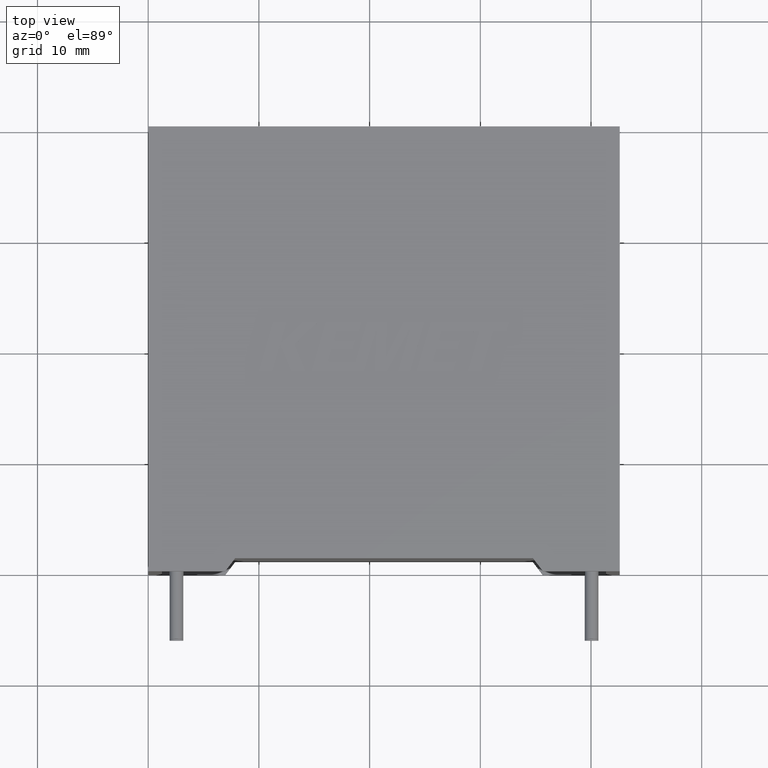
[diagram: clean part render]
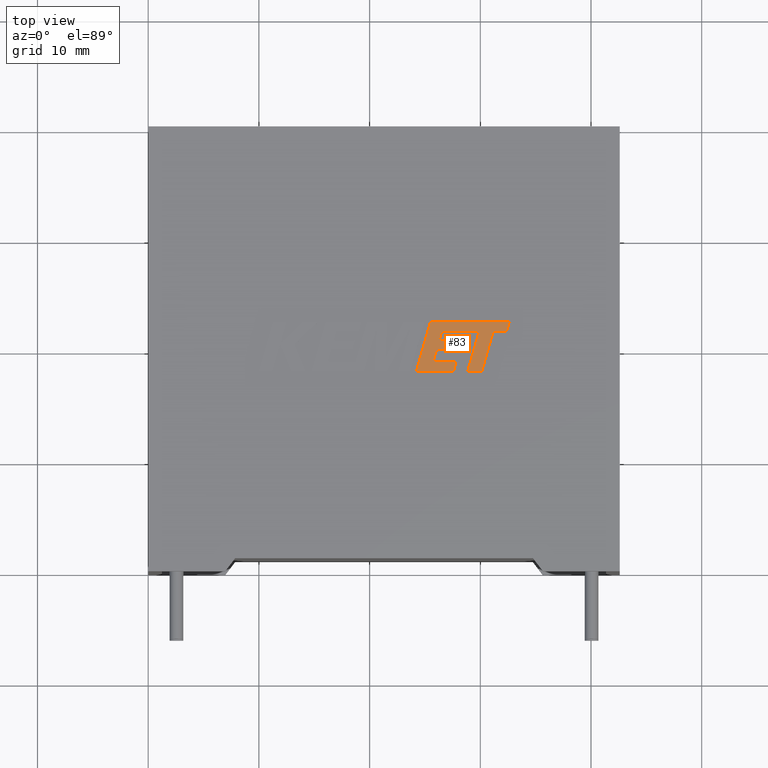
[diagram: same view with one face highlighted and labeled with its STEP entity id]
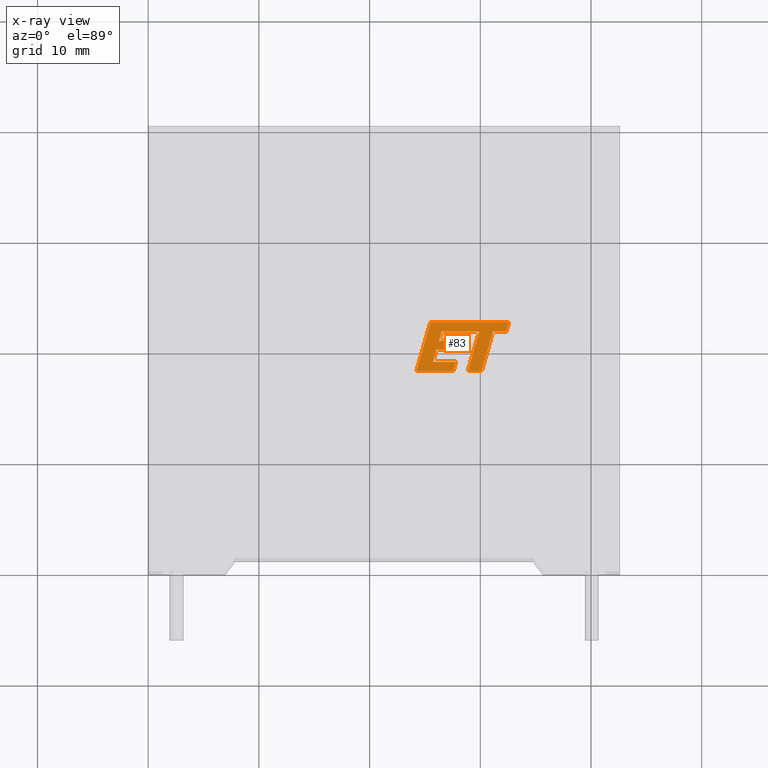
[diagram: x-ray of the same camera — body ghosted, the highlighted face saturated]
A machine part, top view. The second image highlights one B-rep face of the part: STEP entity #83.
The next image is the same camera in x-ray: the body ghosted, the highlighted face saturated — about 0% of this face is hidden behind the body in this view.
In plain terms, the highlighted planar face has unit normal (-0, 0, 1).
Its self-contained STEP definition (entity closure, byte-faithful):
#6 = EDGE_CURVE ( 'NONE', #1576, #2768, #950, .T. ) ;
#40 = FACE_OUTER_BOUND ( 'NONE', #1829, .T. ) ;
#45 = CARTESIAN_POINT ( 'NONE',  ( 32.37075679330736500, 21.65695736867256800, 20.40500000000000100 ) ) ;
#61 = VERTEX_POINT ( 'NONE', #2736 ) ;
#77 = CARTESIAN_POINT ( 'NONE',  ( 29.89313066474344200, 21.65705377867145700, 20.40500000000000100 ) ) ;
#80 = VERTEX_POINT ( 'NONE', #310 ) ;
#83 = ADVANCED_FACE ( 'NONE', ( #40 ), #1997, .T. ) ;
#88 = VERTEX_POINT ( 'NONE', #2972 ) ;
#90 = EDGE_CURVE ( 'NONE', #88, #1980, #719, .T. ) ;
#93 = EDGE_CURVE ( 'NONE', #604, #1782, #391, .T. ) ;
#138 = EDGE_CURVE ( 'NONE', #2768, #1651, #1220, .T. ) ;
#141 = CARTESIAN_POINT ( 'NONE',  ( 26.27200581737446300, 20.84403507756074300, 20.40500000000000100 ) ) ;
#187 = LINE ( 'NONE', #924, #2376 ) ;
#212 = ORIENTED_EDGE ( 'NONE', *, *, #426, .T. ) ;
#220 = DIRECTION ( 'NONE',  ( 0.9999891854650021500, -0.004650693823667352200, 0.0000000000000000000 ) ) ;
#232 = DIRECTION ( 'NONE',  ( -1.000000000000000000, 0.0000000000000000000, 0.0000000000000000000 ) ) ;
#254 = CARTESIAN_POINT ( 'NONE',  ( 27.81132374233068600, 18.92196462307432700, 20.40500000000000100 ) ) ;
#260 = CARTESIAN_POINT ( 'NONE',  ( 25.72339385838279600, 18.92196462307432700, 20.40500000000000100 ) ) ;
#291 = CARTESIAN_POINT ( 'NONE',  ( 26.51206906704381800, 21.66904345445730200, 20.40500000000000100 ) ) ;
#302 = DIRECTION ( 'NONE',  ( -1.000000000000000000, -9.064081856670371200E-016, 0.0000000000000000000 ) ) ;
#310 = CARTESIAN_POINT ( 'NONE',  ( 28.17549160006052100, 20.84403507756074300, 20.40500000000000100 ) ) ;
#342 = DIRECTION ( 'NONE',  ( 0.2762033010288772500, 0.9610992334305296100, 0.0000000000000000000 ) ) ;
#370 = VECTOR ( 'NONE', #868, 1000.000000000000000 ) ;
#380 = DIRECTION ( 'NONE',  ( 0.2793947940814967600, 0.9601763114346021400, 0.0000000000000000000 ) ) ;
#385 = VECTOR ( 'NONE', #232, 1000.000000000000000 ) ;
#391 = LINE ( 'NONE', #1549, #874 ) ;
#411 = VECTOR ( 'NONE', #847, 999.9999999999998900 ) ;
#426 = EDGE_CURVE ( 'NONE', #428, #2434, #2578, .T. ) ;
#428 = VERTEX_POINT ( 'NONE', #1685 ) ;
#456 = CARTESIAN_POINT ( 'NONE',  ( 28.54467650997437600, 21.66332509390189600, 20.40500000000000100 ) ) ;
#470 = VERTEX_POINT ( 'NONE', #456 ) ;
#471 = ORIENTED_EDGE ( 'NONE', *, *, #1256, .T. ) ;
#478 = LINE ( 'NONE', #2056, #411 ) ;
#498 = EDGE_CURVE ( 'NONE', #2434, #1148, #2342, .T. ) ;
#501 = ORIENTED_EDGE ( 'NONE', *, *, #1468, .T. ) ;
#509 = ORIENTED_EDGE ( 'NONE', *, *, #3036, .T. ) ;
#516 = VECTOR ( 'NONE', #2804, 1000.000000000000000 ) ;
#526 = VECTOR ( 'NONE', #1778, 1000.000000000000100 ) ;
#538 = DIRECTION ( 'NONE',  ( 0.9999999968487352000, -7.938847107242143300E-005, 0.0000000000000000000 ) ) ;
#550 = VECTOR ( 'NONE', #302, 1000.000000000000000 ) ;
#565 = ORIENTED_EDGE ( 'NONE', *, *, #6, .T. ) ;
#589 = DIRECTION ( 'NONE',  ( 1.000000000000000000, 0.0000000000000000000, 0.0000000000000000000 ) ) ;
#604 = VERTEX_POINT ( 'NONE', #45 ) ;
#655 = DIRECTION ( 'NONE',  ( -1.000000000000000000, 0.0000000000000000000, 0.0000000000000000000 ) ) ;
#680 = ORIENTED_EDGE ( 'NONE', *, *, #2729, .T. ) ;
#719 = LINE ( 'NONE', #77, #526 ) ;
#721 = DIRECTION ( 'NONE',  ( 0.2745159998572472800, 0.9615825319869199000, 0.0000000000000000000 ) ) ;
#759 = ORIENTED_EDGE ( 'NONE', *, *, #90, .T. ) ;
#800 = AXIS2_PLACEMENT_3D ( 'NONE', #1537, #2489, #1283 ) ;
#814 = VERTEX_POINT ( 'NONE', #2775 ) ;
#847 = DIRECTION ( 'NONE',  ( 0.2762437428917328100, 0.9610876102172820600, 0.0000000000000000000 ) ) ;
#863 = CARTESIAN_POINT ( 'NONE',  ( 24.22065186225110600, 18.07793999999988400, 20.40500000000000100 ) ) ;
#868 = DIRECTION ( 'NONE',  ( 1.000000000000000000, 0.0000000000000000000, 0.0000000000000000000 ) ) ;
#874 = VECTOR ( 'NONE', #342, 999.9999999999998900 ) ;
#924 = CARTESIAN_POINT ( 'NONE',  ( 28.54467650997437600, 21.66332509390189600, 20.40500000000000100 ) ) ;
#950 = LINE ( 'NONE', #2414, #1022 ) ;
#957 = LINE ( 'NONE', #291, #1690 ) ;
#967 = DIRECTION ( 'NONE',  ( -0.2764273280489751300, -0.9610348236706639500, 0.0000000000000000000 ) ) ;
#1003 = CARTESIAN_POINT ( 'NONE',  ( 31.15634887918023200, 21.65705377866043300, 20.40500000000000100 ) ) ;
#1018 = CARTESIAN_POINT ( 'NONE',  ( 24.22065186225110600, 18.07793999999988400, 20.40500000000000100 ) ) ;
#1022 = VECTOR ( 'NONE', #967, 1000.000000000000200 ) ;
#1075 = VECTOR ( 'NONE', #2841, 1000.000000000000100 ) ;
#1133 = EDGE_CURVE ( 'NONE', #470, #88, #187, .T. ) ;
#1148 = VERTEX_POINT ( 'NONE', #2645 ) ;
#1155 = CARTESIAN_POINT ( 'NONE',  ( 27.57182693403756000, 18.07793999999988400, 20.40500000000000100 ) ) ;
#1161 = LINE ( 'NONE', #2588, #370 ) ;
#1184 = VERTEX_POINT ( 'NONE', #3039 ) ;
#1191 = LINE ( 'NONE', #1155, #1075 ) ;
#1220 = LINE ( 'NONE', #863, #3114 ) ;
#1247 = CARTESIAN_POINT ( 'NONE',  ( 27.94128157793912900, 20.02420559324085800, 20.40500000000000100 ) ) ;
#1256 = EDGE_CURVE ( 'NONE', #80, #814, #2906, .T. ) ;
#1283 = DIRECTION ( 'NONE',  ( 1.000000000000000000, 0.0000000000000000000, 0.0000000000000000000 ) ) ;
#1309 = VECTOR ( 'NONE', #2694, 999.9999999999998900 ) ;
#1344 = ORIENTED_EDGE ( 'NONE', *, *, #2405, .T. ) ;
#1357 = CARTESIAN_POINT ( 'NONE',  ( 32.61690448309159500, 22.51347267852247200, 20.40500000000000100 ) ) ;
#1394 = VECTOR ( 'NONE', #380, 1000.000000000000100 ) ;
#1468 = EDGE_CURVE ( 'NONE', #1510, #604, #2057, .T. ) ;
#1471 = LINE ( 'NONE', #1247, #1309 ) ;
#1510 = VERTEX_POINT ( 'NONE', #2962 ) ;
#1537 = CARTESIAN_POINT ( 'NONE',  ( -0.1503410928526370500, -4.145153983250438000, 20.40500000000000100 ) ) ;
#1549 = CARTESIAN_POINT ( 'NONE',  ( 32.37075679330736500, 21.65695736867256800, 20.40500000000000100 ) ) ;
#1576 = VERTEX_POINT ( 'NONE', #2476 ) ;
#1629 = ORIENTED_EDGE ( 'NONE', *, *, #2281, .T. ) ;
#1651 = VERTEX_POINT ( 'NONE', #3003 ) ;
#1664 = ORIENTED_EDGE ( 'NONE', *, *, #1133, .T. ) ;
#1685 = CARTESIAN_POINT ( 'NONE',  ( 27.81132374233068600, 18.92196462307432700, 20.40500000000000100 ) ) ;
#1690 = VECTOR ( 'NONE', #2994, 999.9999999999998900 ) ;
#1702 = EDGE_CURVE ( 'NONE', #1148, #1184, #2485, .T. ) ;
#1778 = DIRECTION ( 'NONE',  ( -0.2763173343569894600, -0.9610664548998927300, 0.0000000000000000000 ) ) ;
#1782 = VERTEX_POINT ( 'NONE', #1357 ) ;
#1814 = VECTOR ( 'NONE', #721, 1000.000000000000100 ) ;
#1829 = EDGE_LOOP ( 'NONE', ( #680, #1664, #759, #1344, #1629, #501, #2153, #2696, #565, #2355, #509, #212, #2858, #1869, #2925, #471, #2626 ) ) ;
#1849 = CARTESIAN_POINT ( 'NONE',  ( 26.51206906704381800, 21.66904345445730200, 20.40500000000000100 ) ) ;
#1869 = ORIENTED_EDGE ( 'NONE', *, *, #1702, .T. ) ;
#1977 = CARTESIAN_POINT ( 'NONE',  ( 32.61690448309159500, 22.51347267852247200, 20.40500000000000100 ) ) ;
#1980 = VERTEX_POINT ( 'NONE', #2410 ) ;
#1985 = LINE ( 'NONE', #141, #1394 ) ;
#1997 = PLANE ( 'NONE',  #800 ) ;
#2003 = VECTOR ( 'NONE', #655, 1000.000000000000000 ) ;
#2046 = VECTOR ( 'NONE', #538, 1000.000000000000100 ) ;
#2056 = CARTESIAN_POINT ( 'NONE',  ( 30.12761042085275800, 18.07793999999988400, 20.40500000000000100 ) ) ;
#2057 = LINE ( 'NONE', #1003, #2046 ) ;
#2089 = EDGE_CURVE ( 'NONE', #1782, #1576, #2479, .T. ) ;
#2153 = ORIENTED_EDGE ( 'NONE', *, *, #93, .T. ) ;
#2281 = EDGE_CURVE ( 'NONE', #61, #1510, #478, .T. ) ;
#2298 = CARTESIAN_POINT ( 'NONE',  ( 26.03806552924152100, 20.02420559324085800, 20.40500000000000100 ) ) ;
#2323 = EDGE_CURVE ( 'NONE', #814, #2437, #1985, .T. ) ;
#2342 = LINE ( 'NONE', #260, #1814 ) ;
#2355 = ORIENTED_EDGE ( 'NONE', *, *, #138, .T. ) ;
#2376 = VECTOR ( 'NONE', #220, 1000.000000000000100 ) ;
#2378 = CARTESIAN_POINT ( 'NONE',  ( 28.17549160006052100, 20.84403507756074300, 20.40500000000000100 ) ) ;
#2405 = EDGE_CURVE ( 'NONE', #1980, #61, #1161, .T. ) ;
#2410 = CARTESIAN_POINT ( 'NONE',  ( 28.86409549902650400, 18.07793999999988400, 20.40500000000000100 ) ) ;
#2414 = CARTESIAN_POINT ( 'NONE',  ( 25.49646665750985300, 22.51347267852246900, 20.40500000000000100 ) ) ;
#2434 = VERTEX_POINT ( 'NONE', #2827 ) ;
#2437 = VERTEX_POINT ( 'NONE', #1849 ) ;
#2476 = CARTESIAN_POINT ( 'NONE',  ( 25.49646665750985300, 22.51347267852246900, 20.40500000000000100 ) ) ;
#2479 = LINE ( 'NONE', #1977, #550 ) ;
#2485 = LINE ( 'NONE', #2298, #516 ) ;
#2489 = DIRECTION ( 'NONE',  ( -0.0000000000000000000, 0.0000000000000000000, 1.000000000000000000 ) ) ;
#2548 = EDGE_CURVE ( 'NONE', #1184, #80, #1471, .T. ) ;
#2578 = LINE ( 'NONE', #254, #385 ) ;
#2588 = CARTESIAN_POINT ( 'NONE',  ( 28.86409549902650400, 18.07793999999988400, 20.40500000000000100 ) ) ;
#2626 = ORIENTED_EDGE ( 'NONE', *, *, #2323, .T. ) ;
#2645 = CARTESIAN_POINT ( 'NONE',  ( 26.03806552924152100, 20.02420559324085800, 20.40500000000000100 ) ) ;
#2694 = DIRECTION ( 'NONE',  ( 0.2746918797667528000, 0.9615323037684214700, 0.0000000000000000000 ) ) ;
#2696 = ORIENTED_EDGE ( 'NONE', *, *, #2089, .T. ) ;
#2729 = EDGE_CURVE ( 'NONE', #2437, #470, #957, .T. ) ;
#2736 = CARTESIAN_POINT ( 'NONE',  ( 30.12761042085275800, 18.07793999999988400, 20.40500000000000100 ) ) ;
#2768 = VERTEX_POINT ( 'NONE', #1018 ) ;
#2775 = CARTESIAN_POINT ( 'NONE',  ( 26.27200581737446300, 20.84403507756074300, 20.40500000000000100 ) ) ;
#2804 = DIRECTION ( 'NONE',  ( 1.000000000000000000, 0.0000000000000000000, 0.0000000000000000000 ) ) ;
#2827 = CARTESIAN_POINT ( 'NONE',  ( 25.72339385838279600, 18.92196462307432700, 20.40500000000000100 ) ) ;
#2841 = DIRECTION ( 'NONE',  ( 0.2729786930695448600, 0.9620200793798656700, 0.0000000000000000000 ) ) ;
#2858 = ORIENTED_EDGE ( 'NONE', *, *, #498, .T. ) ;
#2906 = LINE ( 'NONE', #2378, #2003 ) ;
#2925 = ORIENTED_EDGE ( 'NONE', *, *, #2548, .T. ) ;
#2962 = CARTESIAN_POINT ( 'NONE',  ( 31.15634887918023200, 21.65705377866043300, 20.40500000000000100 ) ) ;
#2972 = CARTESIAN_POINT ( 'NONE',  ( 29.89313066474344200, 21.65705377867145700, 20.40500000000000100 ) ) ;
#2994 = DIRECTION ( 'NONE',  ( 0.9999960426590096500, -0.002813301676026588700, 0.0000000000000000000 ) ) ;
#3003 = CARTESIAN_POINT ( 'NONE',  ( 27.57182693403756000, 18.07793999999988400, 20.40500000000000100 ) ) ;
#3036 = EDGE_CURVE ( 'NONE', #1651, #428, #1191, .T. ) ;
#3039 = CARTESIAN_POINT ( 'NONE',  ( 27.94128157793912900, 20.02420559324085800, 20.40500000000000100 ) ) ;
#3114 = VECTOR ( 'NONE', #589, 1000.000000000000000 ) ;